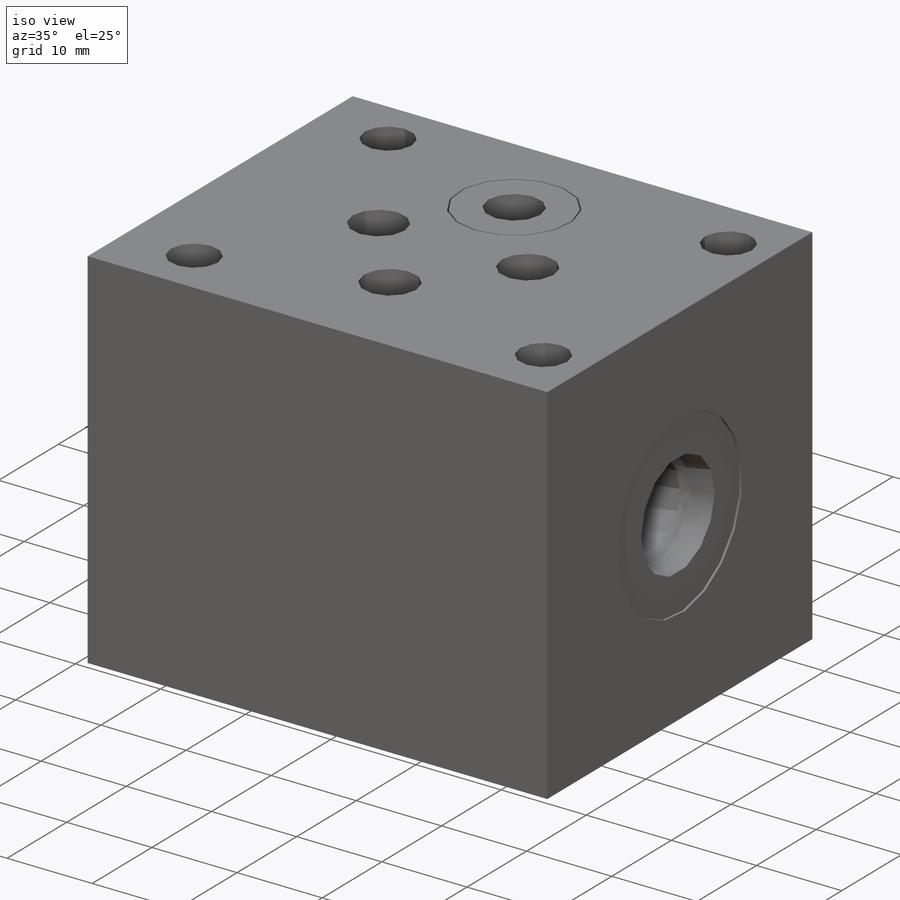
[diagram: iso view]
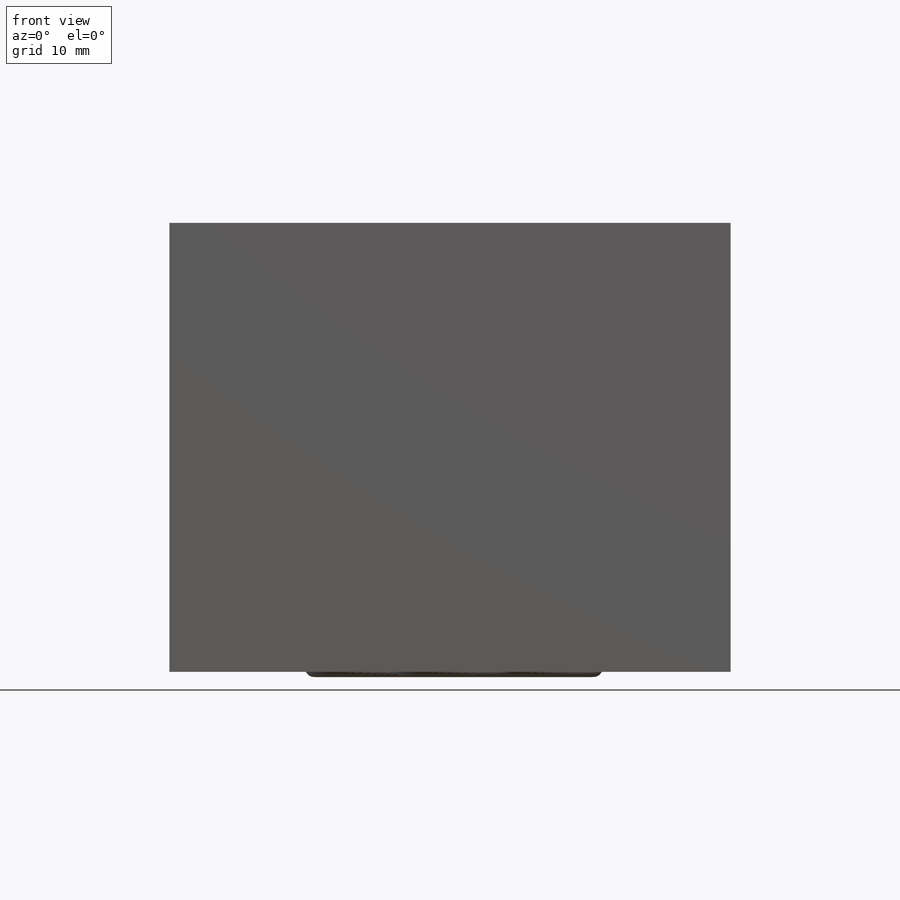
[diagram: front view]
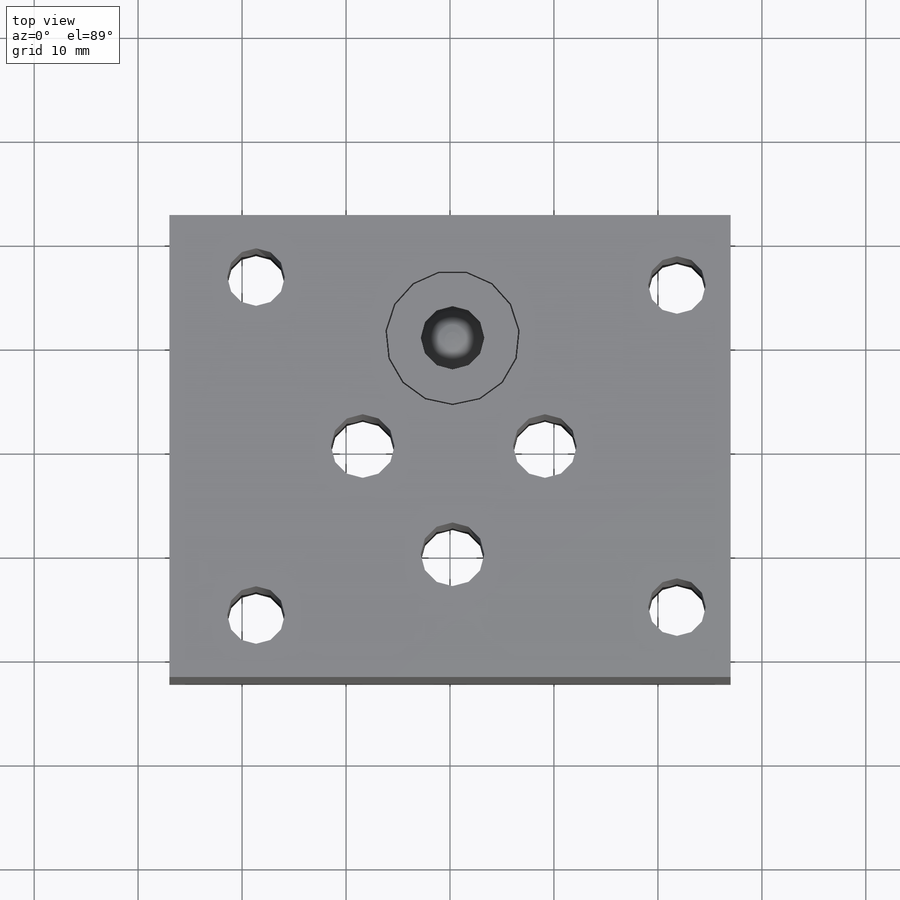
[diagram: top view]
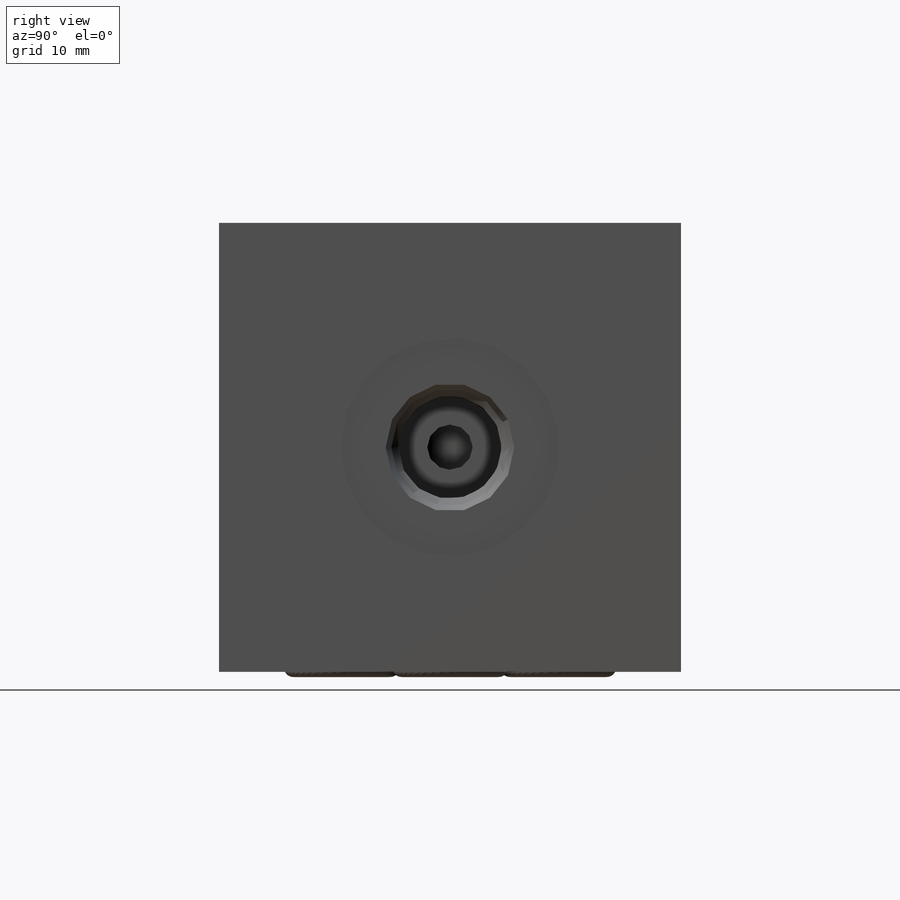
[diagram: right view]
SOLIDWORKS PART (.sldprt)
format: sldprt  version: not decoded by parser v0  size: 442,368 bytes
history: native  units: mm
features: sketch x17, plane x11, revolve x5, cut_extrude x4, cut_revolve x4, extrude x2, material x1, hole x1 (+13 scaffold rows collapsed)
feature tree (58):
  scaffold x13  (default folders/planes/origin — collapsed)
  material  "Alloy Steel"
  plane  "Plane1"
  sketch  "Sketch1"  dims[D1=44.45mm D2=53.975mm D3=26.9875mm]
  extrude  "Extrude1"  Depth=43.18mm
  sketch  "Sketch2"  dims[D1=6.1214mm D2=9.1313mm D3=10.414mm D4=8.3947mm D5=10.414mm D6=0.2413mm D7=0.2413mm]
  cut_extrude  "Cut-Extrude1"  Depth=0mm
  sketch  "Sketch3"  dims[D1=11.1252mm]
  cut_extrude  "Cut-Extrude2"  Depth=1.27mm
  plane  "Plane2"
  sketch  "Sketch4"  dims[D1=1.778mm D2=9.3472mm]
  revolve  "Revolve1"  Angle=360deg
  plane  "Plane3"
  sketch  "Sketch5"  dims[D1=1.778mm D2=9.3472mm]
  revolve  "Revolve2"  Angle=360deg
  plane  "Plane4"
  sketch  "Sketch6"  dims[D1=1.778mm D3=1.778mm D2=9.3472mm]
  revolve  "Revolve3"  Angle=360deg
  plane  "Plane5"
  sketch  "Sketch7"  dims[D1=1.778mm D2=9.3472mm]
  revolve  "Revolve4"  Angle=360deg
  plane  "Plane6"
  sketch  "S2D0007"  dims[c1.D1=0.254mm c1.D2=21.59mm c1.D3=20.955mm c1.D4=12.3698mm c1.D5=13.97mm c1.D6=9.9568mm c1.D7=~0.938906mm c2.D7=45.0deg c2.D8=2.5527mm c2.D9=2.5527mm c3.D9=12.0deg]
  cut_revolve  "Cut-Revolve1"  Angle=360deg
  plane  "Plane7"
  sketch  "Sketch9"  dims[c1.D1=0.254mm c1.D2=21.59mm c1.D3=9.9568mm c1.D4=13.97mm c1.D5=20.955mm c1.D6=12.3698mm c1.D7=2.5527mm c2.D7=12.0deg c2.D8=~0.938906mm c3.D8=45.0deg c3.D9=2.5527mm]
  cut_revolve  "Cut-Revolve2"  Angle=360deg
  plane  "Plane8"
  sketch  "S2D0006"  dims[c1.D1=4.3688mm c1.D2=2.1844mm c2.D2=59.0deg c2.D3=17.8562mm]
  cut_revolve  "Cut-Revolve3"  Angle=360deg
  plane  "Plane9"
  sketch  "Sketch11"  dims[c1.D1=4.3688mm c1.D2=2.1844mm c2.D2=59.0deg c2.D3=15.4178mm]
  cut_revolve  "Cut-Revolve4"  Angle=360deg
  plane  "Plane10"
  sketch  "Sketch16"  dims[D1=12.9794mm]
  cut_extrude  "Cut-Extrude3"  Depth=3.2004mm
  sketch  "Sketch17"  dims[D1=11.557mm]
  cut_extrude  "Cut-Extrude4"  Depth=17.6784mm
  sketch  "Sketch12"  dims[D1=4.7625mm]
  revolve  "Revolve5"  Angle=360deg
  sketch  "Sketch13"
  plane  "Plane11"
  extrude  "Extrude2"  Depth=0mm
  hole  "Hole1"  Diameter=5.5372mm Depth=43.18mm
  sketch  "Sketch19"  dims[D1=5.1562mm D2=6.731mm D3=30.988mm D4=40.4876mm D5=0.762mm D6=31.75mm]
  sketch  "Sketch18"  dims[Diameter=5.5372mm Depth=43.18mm]
decode coverage: 32 of 33 modeling features carry decoded parameters
note: ~ marks probable driven/reference dimensions
note: suppression state not decoded; provenance and decode notes live in map.json
